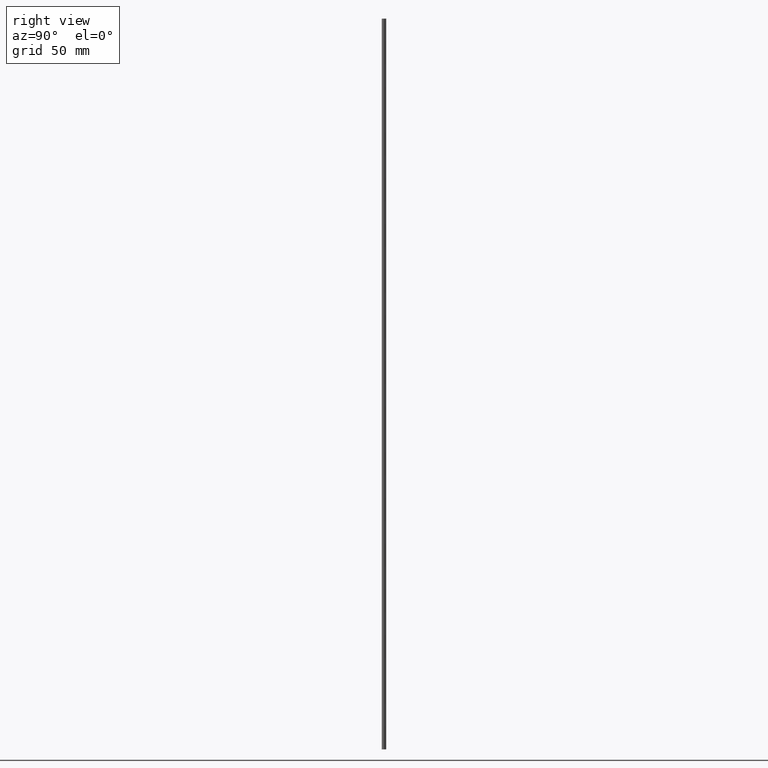
[diagram: clean part render]
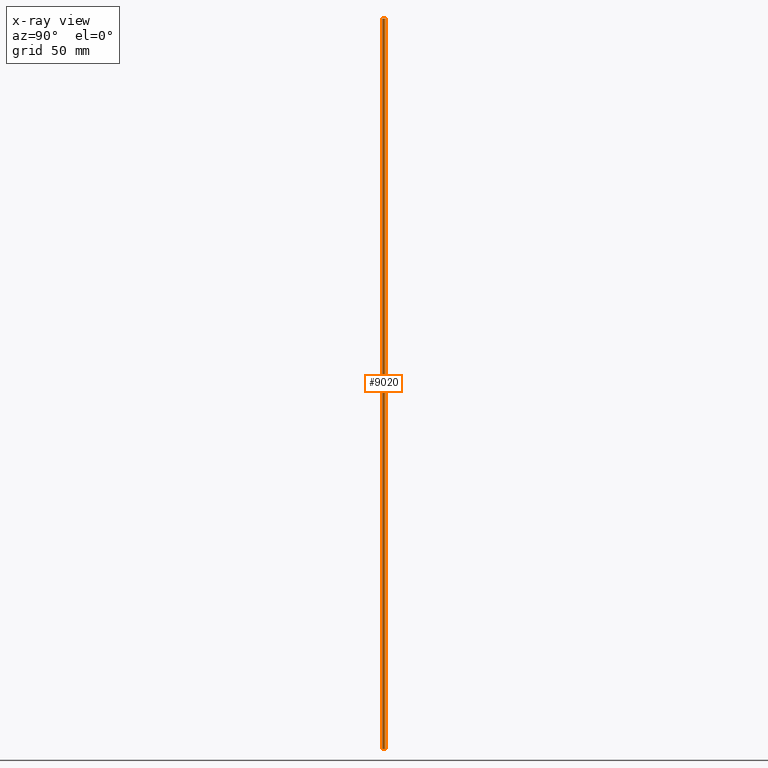
[diagram: x-ray — body ghosted, one internal face saturated and labeled with its STEP entity id]
A machine part, right view, then the same camera in x-ray: the body is ghosted and one INTERNAL B-rep face — a face not visible from any outside direction — is saturated and labeled: STEP entity #9020.
In plain terms, the highlighted face is a freeform B-spline surface patch.
Its self-contained STEP definition (entity closure, byte-faithful):
#8918=CARTESIAN_POINT('',(0.088525675992569,-0.744757144772750,410.000000000000170));
#8919=CARTESIAN_POINT('',(0.067211046478483,-0.747290711586454,410.0));
#8920=CARTESIAN_POINT('',(0.045786404651143,-0.748601098816400,410.000000000000110));
#8921=CARTESIAN_POINT('',(-0.702814694165257,-0.794387503467543,410.000000000000170));
#8922=CARTESIAN_POINT('',(-0.748601098816400,-0.045786404651143,410.000000000000110));
#8923=CARTESIAN_POINT('',(-0.794387503467543,0.702814694165257,410.000000000000170));
#8924=CARTESIAN_POINT('',(-0.045786404651143,0.748601098816400,410.000000000000110));
#8925=CARTESIAN_POINT('',(0.088525675992569,-0.744757144772750,-10.250000000000002));
#8926=CARTESIAN_POINT('',(0.067211046478483,-0.747290711586454,-10.249999999999995));
#8927=CARTESIAN_POINT('',(0.045786404651143,-0.748601098816400,-10.250000000000000));
#8928=CARTESIAN_POINT('',(-0.702814694165257,-0.794387503467543,-10.250000000000000));
#8929=CARTESIAN_POINT('',(-0.748601098816400,-0.045786404651143,-10.250000000000000));
#8930=CARTESIAN_POINT('',(-0.794387503467543,0.702814694165257,-10.250000000000000));
#8931=CARTESIAN_POINT('',(-0.045786404651143,0.748601098816400,-10.250000000000000));
#8939=(BOUNDED_SURFACE()B_SPLINE_SURFACE(2,1,((#8918,#8925),(#8919,#8926),(#8920,#8927),(#8921,#8928),(#8922,#8929),(#8923,#8930),(#8924,#8931)),.UNSPECIFIED.,.F.,.F.,.U.)B_SPLINE_SURFACE_WITH_KNOTS((3,2,2,3),(2,2),(3.078760800517997,3.141592653589793,4.712388980384690,6.283185307179586),(0.0,420.250000000000110),.UNSPECIFIED.)GEOMETRIC_REPRESENTATION_ITEM()RATIONAL_B_SPLINE_SURFACE(((0.977505800795127,0.977505800795127),(0.988284271247462,0.988284271247462),(1.0,1.0),(0.707106781186548,0.707106781186548),(1.0,1.0),(0.707106781186548,0.707106781186548),(1.0,1.0)))REPRESENTATION_ITEM('')SURFACE());
#8940=CARTESIAN_POINT('',(0.088525692455826,-0.744757142815842,-1.817234E-014));
#8941=VERTEX_POINT('',#8940);
#8942=CARTESIAN_POINT('',(-0.750000000000000,0.0,0.0));
#8943=VERTEX_POINT('',#8942);
#8944=CARTESIAN_POINT('',(0.088525692455826,-0.744757142815842,-1.817234E-014));
#8945=CARTESIAN_POINT('',(0.044418106376237,-0.750000000000000,0.0));
#8946=CARTESIAN_POINT('',(0.0,-0.750000000000000,0.0));
#8947=CARTESIAN_POINT('',(-0.750000000000000,-0.750000000000000,0.0));
#8948=CARTESIAN_POINT('',(-0.750000000000000,0.0,0.0));
#8956=(BOUNDED_CURVE()B_SPLINE_CURVE(2,(#8944,#8945,#8946,#8947,#8948),.UNSPECIFIED.,.F.,.U.)B_SPLINE_CURVE_WITH_KNOTS((3,2,3),(0.229562466043829,0.250000000000000,0.500000000000000),.UNSPECIFIED.)CURVE()GEOMETRIC_REPRESENTATION_ITEM()RATIONAL_B_SPLINE_CURVE((0.956026739542823,0.976055939579871,1.0,0.707106781186548,1.0))REPRESENTATION_ITEM(''));
#8957=EDGE_CURVE('',#8941,#8943,#8956,.T.);
#8958=ORIENTED_EDGE('',*,*,#8957,.F.);
#8959=CARTESIAN_POINT('',(0.088525692455888,-0.744757142815834,400.0));
#8960=VERTEX_POINT('',#8959);
#8961=CARTESIAN_POINT('',(0.088525692455888,-0.744757142815834,400.0));
#8962=CARTESIAN_POINT('',(0.088525692455826,-0.744757142815842,-1.817234E-014));
#8963=QUASI_UNIFORM_CURVE('',1,(#8961,#8962),.UNSPECIFIED.,.F.,.U.);
#8964=EDGE_CURVE('',#8960,#8941,#8963,.T.);
#8965=ORIENTED_EDGE('',*,*,#8964,.F.);
#8966=CARTESIAN_POINT('',(-0.750000000000000,0.0,400.0));
#8967=VERTEX_POINT('',#8966);
#8968=CARTESIAN_POINT('',(0.088525692455888,-0.744757142815834,400.0));
#8969=CARTESIAN_POINT('',(0.044418106376300,-0.750000000000000,400.0));
#8970=CARTESIAN_POINT('',(0.0,-0.750000000000000,400.0));
#8971=CARTESIAN_POINT('',(-0.750000000000000,-0.750000000000000,400.0));
#8972=CARTESIAN_POINT('',(-0.750000000000000,0.0,400.0));
#8980=(BOUNDED_CURVE()B_SPLINE_CURVE(2,(#8968,#8969,#8970,#8971,#8972),.UNSPECIFIED.,.F.,.U.)B_SPLINE_CURVE_WITH_KNOTS((3,2,3),(0.229562466043801,0.250000000000000,0.500000000000000),.UNSPECIFIED.)CURVE()GEOMETRIC_REPRESENTATION_ITEM()RATIONAL_B_SPLINE_CURVE((0.956026739542767,0.976055939579838,1.0,0.707106781186548,1.0))REPRESENTATION_ITEM(''));
#8981=EDGE_CURVE('',#8960,#8967,#8980,.T.);
#8982=ORIENTED_EDGE('',*,*,#8981,.T.);
#8983=CARTESIAN_POINT('',(-0.045786414827284,0.748601098194001,400.0));
#8984=VERTEX_POINT('',#8983);
#8985=CARTESIAN_POINT('',(-0.750000000000000,0.0,400.0));
#8986=CARTESIAN_POINT('',(-0.750000000000000,0.705529530962135,400.0));
#8987=CARTESIAN_POINT('',(-0.045786414827284,0.748601098194001,400.000000000000060));
#8995=(BOUNDED_CURVE()B_SPLINE_CURVE(2,(#8985,#8986,#8987),.UNSPECIFIED.,.F.,.U.)B_SPLINE_CURVE_WITH_KNOTS((3,3),(0.500000000000000,0.739332957550924),.UNSPECIFIED.)CURVE()GEOMETRIC_REPRESENTATION_ITEM()RATIONAL_B_SPLINE_CURVE((1.0,0.719603998779066,0.976072031619401))REPRESENTATION_ITEM(''));
#8996=EDGE_CURVE('',#8967,#8984,#8995,.T.);
#8997=ORIENTED_EDGE('',*,*,#8996,.T.);
#8998=CARTESIAN_POINT('',(-0.045786414827252,0.748601098194002,-1.865175E-014));
#8999=VERTEX_POINT('',#8998);
#9000=CARTESIAN_POINT('',(-0.045786414827284,0.748601098194001,400.0));
#9001=CARTESIAN_POINT('',(-0.045786414827252,0.748601098194002,-1.865175E-014));
#9002=QUASI_UNIFORM_CURVE('',1,(#9000,#9001),.UNSPECIFIED.,.F.,.U.);
#9003=EDGE_CURVE('',#8984,#8999,#9002,.T.);
#9004=ORIENTED_EDGE('',*,*,#9003,.T.);
#9005=CARTESIAN_POINT('',(-0.750000000000000,0.0,0.0));
#9006=CARTESIAN_POINT('',(-0.750000000000000,0.705529530962199,0.0));
#9007=CARTESIAN_POINT('',(-0.045786414827252,0.748601098194002,-1.865175E-014));
#9015=(BOUNDED_CURVE()B_SPLINE_CURVE(2,(#9005,#9006,#9007),.UNSPECIFIED.,.F.,.U.)B_SPLINE_CURVE_WITH_KNOTS((3,3),(0.500000000000000,0.739332957550940),.UNSPECIFIED.)CURVE()GEOMETRIC_REPRESENTATION_ITEM()RATIONAL_B_SPLINE_CURVE((1.0,0.719603998779048,0.976072031619434))REPRESENTATION_ITEM(''));
#9016=EDGE_CURVE('',#8943,#8999,#9015,.T.);
#9017=ORIENTED_EDGE('',*,*,#9016,.F.);
#9018=EDGE_LOOP('',(#8958,#8965,#8982,#8997,#9004,#9017));
#9019=FACE_OUTER_BOUND('',#9018,.T.);
#9020=ADVANCED_FACE('',(#9019),#8939,.T.);